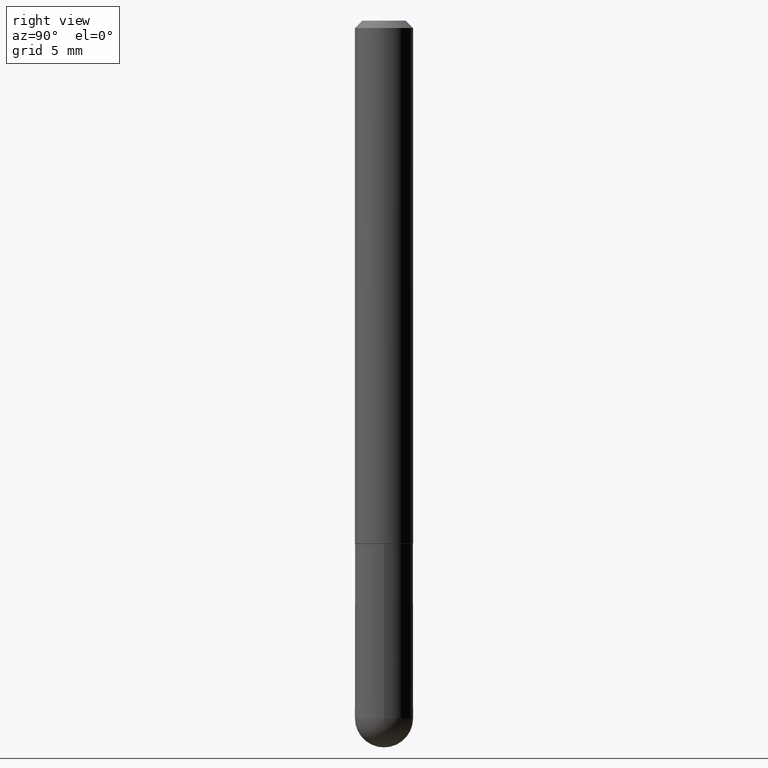
[diagram: clean part render]
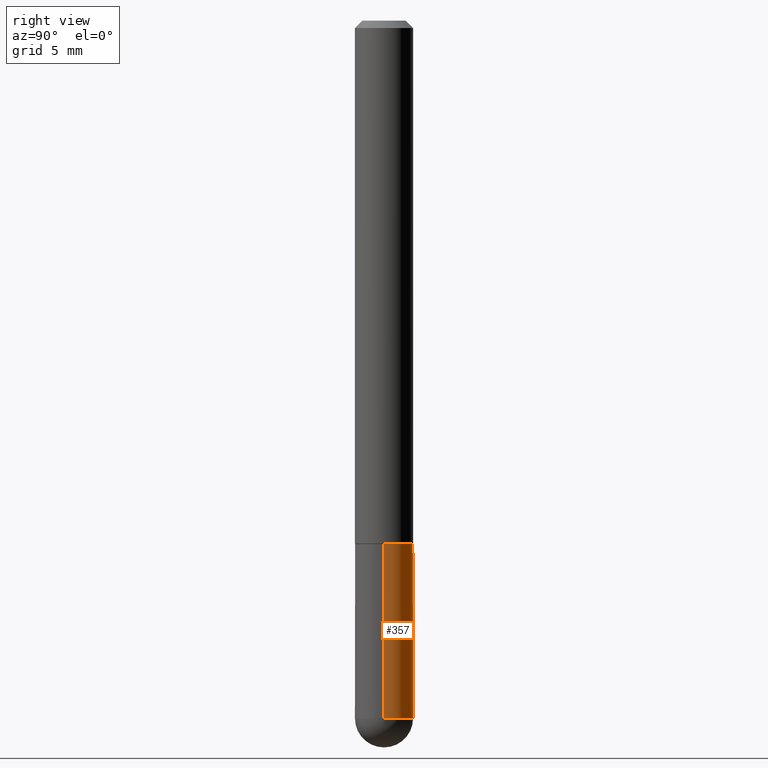
[diagram: same view with one face highlighted and labeled with its STEP entity id]
A machine part, right view. The second image highlights one B-rep face of the part: STEP entity #357.
In plain terms, the highlighted cylindrical surface (edge-blend (fillet) strip) has radius 2.0002 mm, axis along (-0, 0, 1).
Its self-contained STEP definition (entity closure, byte-faithful):
#6 = VECTOR ( 'NONE', #71, 39.37007874015748143 ) ;
#29 = VERTEX_POINT ( 'NONE', #366 ) ;
#32 = VERTEX_POINT ( 'NONE', #278 ) ;
#47 = DIRECTION ( 'NONE',  ( 1.000000000000000000, -6.982962677686261977E-15, 0.000000000000000000 ) ) ;
#49 = DIRECTION ( 'NONE',  ( -2.445468806185136877E-29, 3.491481338843145188E-15, 1.000000000000000000 ) ) ;
#71 = DIRECTION ( 'NONE',  ( -2.445468806185136877E-29, 3.491481338843145188E-15, 1.000000000000000000 ) ) ;
#90 = DIRECTION ( 'NONE',  ( -2.445468806185136597E-29, 3.491481338843145583E-15, 1.000000000000000000 ) ) ;
#97 = EDGE_LOOP ( 'NONE', ( #382, #206, #242, #166, #406 ) ) ;
#99 = AXIS2_PLACEMENT_3D ( 'NONE', #115, #162, #47 ) ;
#103 = DIRECTION ( 'NONE',  ( 1.000000000000000000, -6.982962677686267499E-15, 4.876176775795935793E-29 ) ) ;
#107 = CARTESIAN_POINT ( 'NONE',  ( -0.07874999999999997280, 5.595524044110787031E-16, -3.873661383575737091E-30 ) ) ;
#115 = CARTESIAN_POINT ( 'NONE',  ( 3.465962939006193759E-29, -4.948476501542390442E-15, -1.417300000000000004 ) ) ;
#116 = AXIS2_PLACEMENT_3D ( 'NONE', #377, #90, #103 ) ;
#126 = DIRECTION ( 'NONE',  ( -2.445468806185136597E-29, 3.491481338843145583E-15, 1.000000000000000000 ) ) ;
#139 = CIRCLE ( 'NONE', #99, 0.07875000000000000056 ) ;
#141 = VERTEX_POINT ( 'NONE', #373 ) ;
#143 = EDGE_CURVE ( 'NONE', #141, #32, #203, .T. ) ;
#147 = EDGE_CURVE ( 'NONE', #312, #141, #243, .T. ) ;
#151 = VERTEX_POINT ( 'NONE', #393 ) ;
#154 = LINE ( 'NONE', #107, #6 ) ;
#155 = DIRECTION ( 'NONE',  ( 1.000000000000000000, -6.982962677686264344E-15, 0.000000000000000000 ) ) ;
#162 = DIRECTION ( 'NONE',  ( -2.445468806185136597E-29, 3.491481338843145583E-15, 1.000000000000000000 ) ) ;
#166 = ORIENTED_EDGE ( 'NONE', *, *, #234, .F. ) ;
#170 = VECTOR ( 'NONE', #49, 39.37007874015748143 ) ;
#180 = AXIS2_PLACEMENT_3D ( 'NONE', #313, #126, #286 ) ;
#188 = AXIS2_PLACEMENT_3D ( 'NONE', #369, #256, #155 ) ;
#203 = CIRCLE ( 'NONE', #188, 0.07874999999999997280 ) ;
#206 = ORIENTED_EDGE ( 'NONE', *, *, #289, .T. ) ;
#221 = CARTESIAN_POINT ( 'NONE',  ( 0.07874999999999997280, -5.499083108677933457E-16, 3.839989210939298316E-30 ) ) ;
#223 = EDGE_CURVE ( 'NONE', #29, #151, #139, .T. ) ;
#234 = EDGE_CURVE ( 'NONE', #312, #29, #345, .T. ) ;
#242 = ORIENTED_EDGE ( 'NONE', *, *, #223, .F. ) ;
#243 = CIRCLE ( 'NONE', #180, 0.07874999999999997280 ) ;
#256 = DIRECTION ( 'NONE',  ( -2.445468806185136597E-29, 3.491481338843145583E-15, 1.000000000000000000 ) ) ;
#264 = CYLINDRICAL_SURFACE ( 'NONE', #116, 0.07874999999999997280 ) ;
#278 = CARTESIAN_POINT ( 'NONE',  ( -0.07874999999999997280, -5.213699276399534331E-15, -1.889750000000000263 ) ) ;
#286 = DIRECTION ( 'NONE',  ( 1.000000000000000000, -6.982962677686264344E-15, 0.000000000000000000 ) ) ;
#289 = EDGE_CURVE ( 'NONE', #32, #151, #154, .T. ) ;
#312 = VERTEX_POINT ( 'NONE', #346 ) ;
#313 = CARTESIAN_POINT ( 'NONE',  ( 4.621324676488362597E-29, -6.598026860078835823E-15, -1.889750000000000263 ) ) ;
#345 = LINE ( 'NONE', #221, #170 ) ;
#346 = CARTESIAN_POINT ( 'NONE',  ( 0.07874999999999997280, -6.323159991678405690E-15, -1.889750000000000263 ) ) ;
#357 = ADVANCED_FACE ( 'NONE', ( #403 ), #264, .T. ) ;
#366 = CARTESIAN_POINT ( 'NONE',  ( 0.07875000000000000056, -5.498384812410182999E-15, -1.417300000000000004 ) ) ;
#369 = CARTESIAN_POINT ( 'NONE',  ( 4.621324676488362597E-29, -6.598026860078835823E-15, -1.889750000000000263 ) ) ;
#373 = CARTESIAN_POINT ( 'NONE',  ( 5.499083108678389024E-16, 0.07874999999999328371, -1.889750000000000485 ) ) ;
#377 = CARTESIAN_POINT ( 'NONE',  ( 0.000000000000000000, 0.000000000000000000, 0.000000000000000000 ) ) ;
#382 = ORIENTED_EDGE ( 'NONE', *, *, #143, .T. ) ;
#393 = CARTESIAN_POINT ( 'NONE',  ( -0.07875000000000000056, -5.213699276399534331E-15, -1.417300000000000004 ) ) ;
#403 = FACE_OUTER_BOUND ( 'NONE', #97, .T. ) ;
#406 = ORIENTED_EDGE ( 'NONE', *, *, #147, .T. ) ;